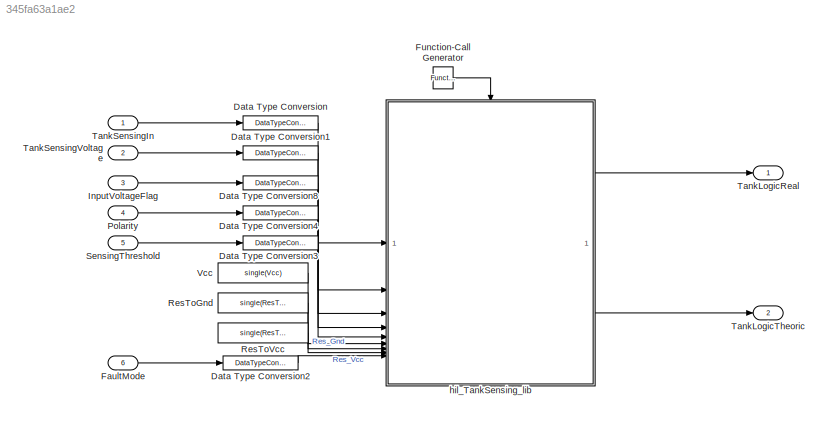
MODEL slx_345fa63a1ae2
KIND model
CONFIG AbsTol = auto
CONFIG EnableMultiTasking = off
CONFIG FixedStep = auto
CONFIG MaxStep = auto
CONFIG MinStep = auto
CONFIG RelTol = 1e-3
CONFIG SampleTimeConstraint = Unconstrained
CONFIG SolverName = VariableStepAuto
CONFIG StartTime = 0.0
CONFIG StopTime = 10.0
BLOCK [DataTypeConversion] Data Type Conversion
  OutDataTypeStr = single
  RndMeth = Floor
  SaturateOnIntegerOverflow = off
BLOCK [DataTypeConversion] Data Type Conversion1
  OutDataTypeStr = single
  RndMeth = Floor
  SaturateOnIntegerOverflow = off
BLOCK [DataTypeConversion] Data Type Conversion2
  OutDataTypeStr = uint8
  RndMeth = Floor
  SaturateOnIntegerOverflow = off
BLOCK [DataTypeConversion] Data Type Conversion3
  OutDataTypeStr = single
  RndMeth = Floor
  SaturateOnIntegerOverflow = off
BLOCK [DataTypeConversion] Data Type Conversion4
  OutDataTypeStr = uint8
  RndMeth = Floor
  SaturateOnIntegerOverflow = off
BLOCK [DataTypeConversion] Data Type Conversion8
  OutDataTypeStr = uint8
  RndMeth = Floor
  SaturateOnIntegerOverflow = off
BLOCK [Inport] FaultMode
  OutDataTypeStr = uint8
  Port = 6
BLOCK [Reference] Function-Call Generator  REF=simulink/Ports &
Subsystems/Function-Call
Generator
  SourceBlock = simulink/Ports &\nSubsystems/Function-Call\nGenerator
  SourceType = Function-Call Generator
BLOCK [Inport] InputVoltageFlag
  OutDataTypeStr = uint8
  Port = 3
BLOCK [Inport] Polarity
  OutDataTypeStr = uint8
  Port = 4
BLOCK [Constant] ResToGnd
  Value = single(ResToGnd)
BLOCK [Constant] ResToVcc
  Value = single(ResToVcc)
BLOCK [Inport] SensingThreshold 
  OutDataTypeStr = single
  Port = 5
BLOCK [Outport] TankLogicReal
  OutDataTypeStr = uint8
BLOCK [Outport] TankLogicTheoric
  OutDataTypeStr = uint8
  Port = 2
BLOCK [Inport] TankSensingIn
  OutDataTypeStr = single
BLOCK [Inport] TankSensingVoltage
  OutDataTypeStr = single
  Port = 2
BLOCK [Constant] Vcc
  OutDataTypeStr = single
  Value = single(Vcc)
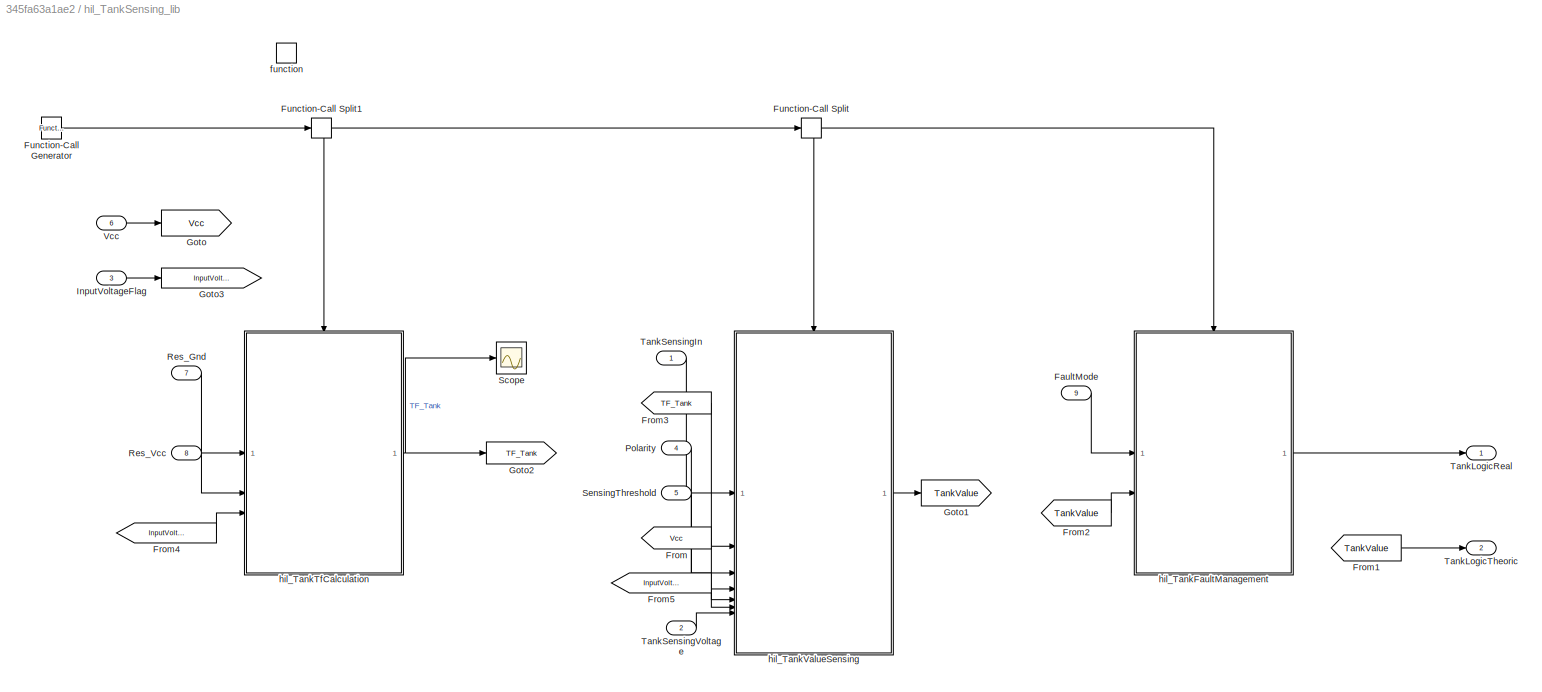
BLOCK [SubSystem] hil_TankSensing_lib
  AncestorBlock = tanksensing_lib/hil_TankSensing_lib
  LibrarySourceBlock = tanksensing_lib/hil_TankSensing_lib
  RTWFcnName = hil_tanksensing_lib
  RTWFcnNameOpts = User specified
  RTWSystemCode = Reusable function
  TreatAsAtomicUnit = on
BLOCK [Inport] hil_TankSensing_lib/FaultMode 
  Port = 9
BLOCK [From] hil_TankSensing_lib/From
  GotoTag = Vcc
BLOCK [From] hil_TankSensing_lib/From1
  GotoTag = TankValue
BLOCK [From] hil_TankSensing_lib/From2
  GotoTag = TankValue
BLOCK [From] hil_TankSensing_lib/From3
  GotoTag = TF_Tank
BLOCK [From] hil_TankSensing_lib/From4
  GotoTag = InputVoltageFlag
BLOCK [From] hil_TankSensing_lib/From5
  GotoTag = InputVoltageFlag
BLOCK [Reference] hil_TankSensing_lib/Function-Call Generator  REF=simulink/Ports &
Subsystems/Function-Call
Generator
  SourceBlock = simulink/Ports &\nSubsystems/Function-Call\nGenerator
  SourceType = Function-Call Generator
BLOCK [FunctionCallSplit] hil_TankSensing_lib/Function-Call Split
  NumOutputPorts = 2
  OutputPortLayout = default
BLOCK [FunctionCallSplit] hil_TankSensing_lib/Function-Call Split1
  NumOutputPorts = 2
  OutputPortLayout = default
BLOCK [Goto] hil_TankSensing_lib/Goto
  GotoTag = Vcc
BLOCK [Goto] hil_TankSensing_lib/Goto1
  GotoTag = TankValue
BLOCK [Goto] hil_TankSensing_lib/Goto2
  GotoTag = TF_Tank
BLOCK [Goto] hil_TankSensing_lib/Goto3
  GotoTag = InputVoltageFlag
BLOCK [Inport] hil_TankSensing_lib/InputVoltageFlag
  Port = 3
BLOCK [Inport] hil_TankSensing_lib/Polarity
  Port = 4
BLOCK [Inport] hil_TankSensing_lib/Res_Gnd
  Port = 7
BLOCK [Inport] hil_TankSensing_lib/Res_Vcc
  Port = 8
BLOCK [Scope] hil_TankSensing_lib/Scope
  Floating = off
  NumInputPorts = 1
  ScopeSpecificationString = Simulink.scopes.TimeScopeBlockCfg('CurrentConfiguration', extmgr.ConfigurationSet(extmgr.Configuration('Core','General UI',true),extmgr.Configuration('Core','Source UI',true),extmgr.Configuration('Sources','WiredSimulink',true,'DataLoggingVariableName','ScopeData1'),extmgr.Configuration('Visuals','Time Domain',true,'SerializedDisplays',{struct('MinYLimReal','-1.00000','MaxYLimReal','1.00000','YLab...<+1380ch>
BLOCK [Inport] hil_TankSensing_lib/SensingThreshold 
  Port = 5
BLOCK [Outport] hil_TankSensing_lib/TankLogicReal
  OutDataTypeStr = uint8
BLOCK [Outport] hil_TankSensing_lib/TankLogicTheoric
  OutDataTypeStr = uint8
  Port = 2
BLOCK [Inport] hil_TankSensing_lib/TankSensingIn
BLOCK [Inport] hil_TankSensing_lib/TankSensingVoltage
  Port = 2
BLOCK [Inport] hil_TankSensing_lib/Vcc
  Port = 6
BLOCK [TriggerPort] hil_TankSensing_lib/function
  StatesWhenEnabling = held
  TriggerType = function-call
  VariantControl = Variant
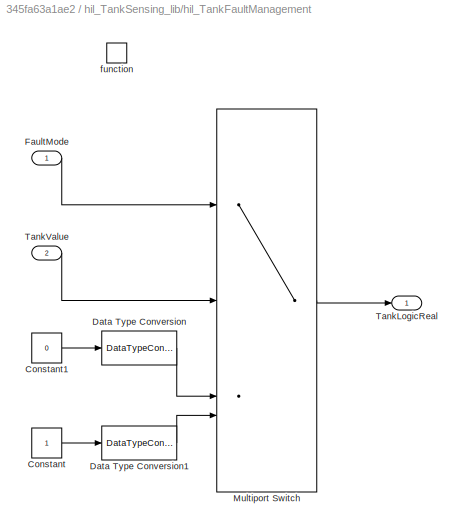
BLOCK [SubSystem] hil_TankSensing_lib/hil_TankFaultManagement
  TreatAsAtomicUnit = on
BLOCK [Constant] hil_TankSensing_lib/hil_TankFaultManagement/Constant
BLOCK [Constant] hil_TankSensing_lib/hil_TankFaultManagement/Constant1
  Value = 0
BLOCK [DataTypeConversion] hil_TankSensing_lib/hil_TankFaultManagement/Data Type Conversion
  OutDataTypeStr = uint8
  RndMeth = Floor
  SaturateOnIntegerOverflow = off
BLOCK [DataTypeConversion] hil_TankSensing_lib/hil_TankFaultManagement/Data Type Conversion1
  OutDataTypeStr = uint8
  RndMeth = Floor
  SaturateOnIntegerOverflow = off
BLOCK [Inport] hil_TankSensing_lib/hil_TankFaultManagement/FaultMode
BLOCK [MultiPortSwitch] hil_TankSensing_lib/hil_TankFaultManagement/Multiport Switch
  DataPortOrder = Zero-based contiguous
  InputSameDT = off
  SaturateOnIntegerOverflow = off
  zeroidx = on
BLOCK [Outport] hil_TankSensing_lib/hil_TankFaultManagement/TankLogicReal
BLOCK [Inport] hil_TankSensing_lib/hil_TankFaultManagement/TankValue
  Port = 2
BLOCK [TriggerPort] hil_TankSensing_lib/hil_TankFaultManagement/function
  StatesWhenEnabling = held
  TriggerType = function-call
  VariantControl = Variant
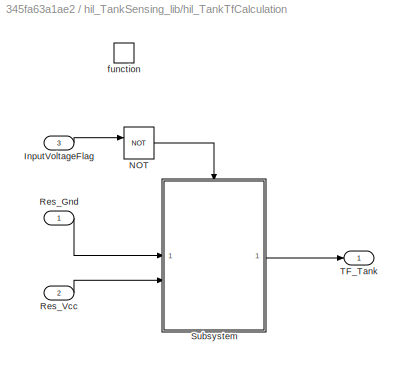
BLOCK [SubSystem] hil_TankSensing_lib/hil_TankTfCalculation
  TreatAsAtomicUnit = on
BLOCK [Inport] hil_TankSensing_lib/hil_TankTfCalculation/InputVoltageFlag
  Port = 3
BLOCK [Logic] hil_TankSensing_lib/hil_TankTfCalculation/NOT
  AllPortsSameDT = off
  IconShape = distinctive
  Operator = NOT
  OutDataTypeStr = boolean
BLOCK [Inport] hil_TankSensing_lib/hil_TankTfCalculation/Res_Gnd
BLOCK [Inport] hil_TankSensing_lib/hil_TankTfCalculation/Res_Vcc
  Port = 2
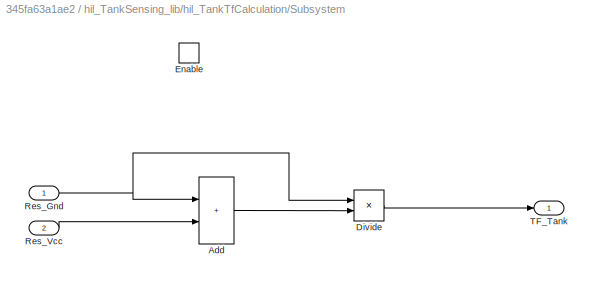
BLOCK [SubSystem] hil_TankSensing_lib/hil_TankTfCalculation/Subsystem
BLOCK [Sum] hil_TankSensing_lib/hil_TankTfCalculation/Subsystem/Add
  IconShape = rectangular
BLOCK [Product] hil_TankSensing_lib/hil_TankTfCalculation/Subsystem/Divide
  Inputs = */
BLOCK [EnablePort] hil_TankSensing_lib/hil_TankTfCalculation/Subsystem/Enable
BLOCK [Inport] hil_TankSensing_lib/hil_TankTfCalculation/Subsystem/Res_Gnd
BLOCK [Inport] hil_TankSensing_lib/hil_TankTfCalculation/Subsystem/Res_Vcc
  Port = 2
BLOCK [Outport] hil_TankSensing_lib/hil_TankTfCalculation/Subsystem/TF_Tank
  OutDataTypeStr = single
BLOCK [Outport] hil_TankSensing_lib/hil_TankTfCalculation/TF_Tank
  OutDataTypeStr = single
BLOCK [TriggerPort] hil_TankSensing_lib/hil_TankTfCalculation/function
  StatesWhenEnabling = held
  TriggerType = function-call
  VariantControl = Variant
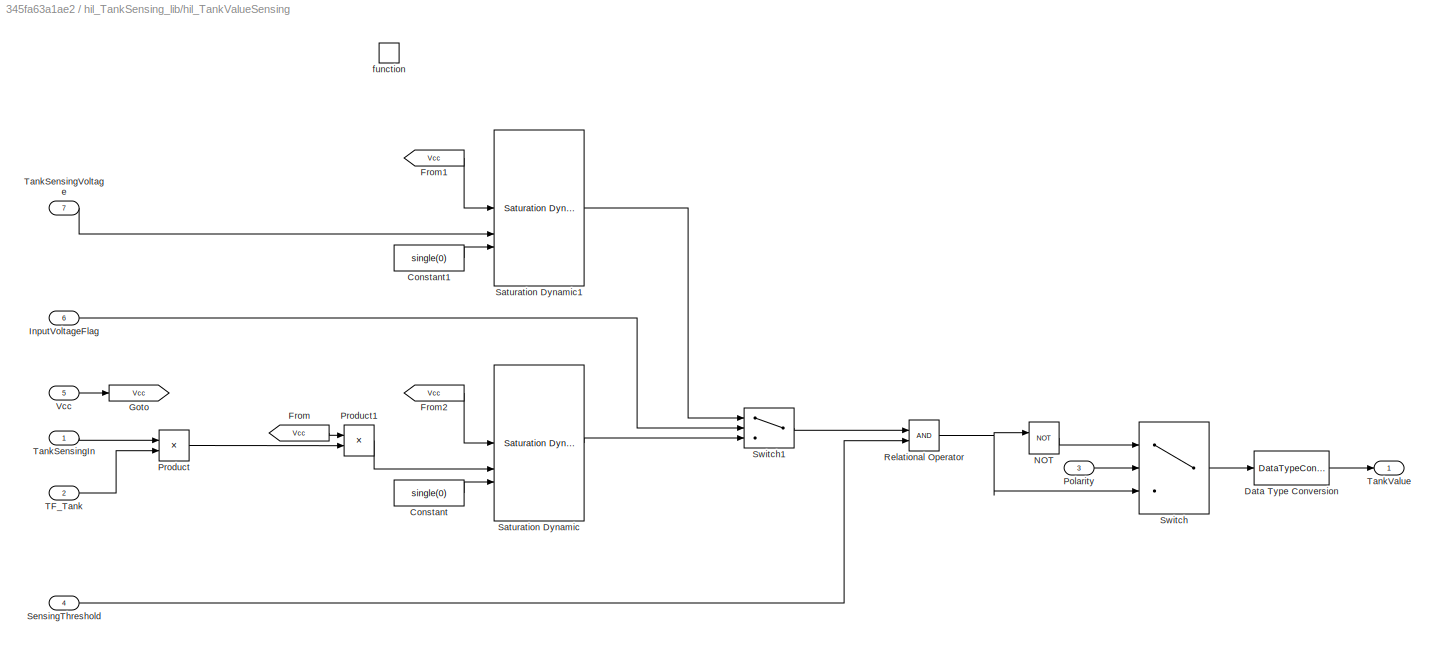
BLOCK [SubSystem] hil_TankSensing_lib/hil_TankValueSensing
  TreatAsAtomicUnit = on
BLOCK [Constant] hil_TankSensing_lib/hil_TankValueSensing/Constant
  Value = single(0)
BLOCK [Constant] hil_TankSensing_lib/hil_TankValueSensing/Constant1
  Value = single(0)
BLOCK [DataTypeConversion] hil_TankSensing_lib/hil_TankValueSensing/Data Type Conversion
  OutDataTypeStr = uint8
  RndMeth = Floor
  SaturateOnIntegerOverflow = off
BLOCK [From] hil_TankSensing_lib/hil_TankValueSensing/From
  GotoTag = Vcc
BLOCK [From] hil_TankSensing_lib/hil_TankValueSensing/From1
  GotoTag = Vcc
BLOCK [From] hil_TankSensing_lib/hil_TankValueSensing/From2
  GotoTag = Vcc
BLOCK [Goto] hil_TankSensing_lib/hil_TankValueSensing/Goto
  GotoTag = Vcc
BLOCK [Inport] hil_TankSensing_lib/hil_TankValueSensing/InputVoltageFlag
  Port = 6
BLOCK [Logic] hil_TankSensing_lib/hil_TankValueSensing/NOT
  AllPortsSameDT = off
  IconShape = distinctive
  Operator = NOT
  OutDataTypeStr = boolean
BLOCK [Inport] hil_TankSensing_lib/hil_TankValueSensing/Polarity
  Port = 3
BLOCK [Product] hil_TankSensing_lib/hil_TankValueSensing/Product
BLOCK [Product] hil_TankSensing_lib/hil_TankValueSensing/Product1
BLOCK [RelationalOperator] hil_TankSensing_lib/hil_TankValueSensing/Relational Operator
  InputSameDT = off
  OutDataTypeStr = boolean
  RndMeth = Zero
BLOCK [Reference] hil_TankSensing_lib/hil_TankValueSensing/Saturation Dynamic  REF=simulink/Discontinuities/Saturation
Dynamic
  SourceBlock = simulink/Discontinuities/Saturation\nDynamic
  SourceType = Saturation Dynamic
BLOCK [Reference] hil_TankSensing_lib/hil_TankValueSensing/Saturation Dynamic1  REF=simulink/Discontinuities/Saturation
Dynamic
  SourceBlock = simulink/Discontinuities/Saturation\nDynamic
  SourceType = Saturation Dynamic
BLOCK [Inport] hil_TankSensing_lib/hil_TankValueSensing/SensingThreshold
  Port = 4
BLOCK [Switch] hil_TankSensing_lib/hil_TankValueSensing/Switch
  Criteria = u2 > Threshold
  InputSameDT = off
  SaturateOnIntegerOverflow = off
BLOCK [Switch] hil_TankSensing_lib/hil_TankValueSensing/Switch1
  Criteria = u2 > Threshold
  InputSameDT = off
  SaturateOnIntegerOverflow = off
BLOCK [Inport] hil_TankSensing_lib/hil_TankValueSensing/TF_Tank
  Port = 2
BLOCK [Inport] hil_TankSensing_lib/hil_TankValueSensing/TankSensingIn
BLOCK [Inport] hil_TankSensing_lib/hil_TankValueSensing/TankSensingVoltage
  Port = 7
BLOCK [Outport] hil_TankSensing_lib/hil_TankValueSensing/TankValue 
BLOCK [Inport] hil_TankSensing_lib/hil_TankValueSensing/Vcc 
  Port = 5
BLOCK [TriggerPort] hil_TankSensing_lib/hil_TankValueSensing/function
  StatesWhenEnabling = held
  TriggerType = function-call
  VariantControl = Variant
LINE Data Type Conversion1:1 -> hil_TankSensing_lib:2
LINE Data Type Conversion2:1 -> hil_TankSensing_lib:9
LINE Data Type Conversion3:1 -> hil_TankSensing_lib:5
LINE Data Type Conversion4:1 -> hil_TankSensing_lib:4
LINE Data Type Conversion8:1 -> hil_TankSensing_lib:3
LINE Data Type Conversion:1 -> hil_TankSensing_lib:1
LINE FaultMode:1 -> Data Type Conversion2:1
LINE Function-Call Generator:1 -> hil_TankSensing_lib:trigger
LINE InputVoltageFlag:1 -> Data Type Conversion8:1
LINE Polarity:1 -> Data Type Conversion4:1
LINE ResToGnd:1 -> hil_TankSensing_lib:7
LINE ResToVcc:1 -> hil_TankSensing_lib:8
LINE SensingThreshold :1 -> Data Type Conversion3:1
LINE TankSensingIn:1 -> Data Type Conversion:1
LINE TankSensingVoltage:1 -> Data Type Conversion1:1
LINE Vcc:1 -> hil_TankSensing_lib:6
LINE hil_TankSensing_lib:1 -> TankLogicReal:1
LINE hil_TankSensing_lib:2 -> TankLogicTheoric:1
CHART Function-call scheduler states=1 transitions=1
  STATE_LABEL 'Run\n\n\n\nsend(xFunction);\n'
CHART Test Sequence states=1 transitions=1
  STATE_LABEL 'Run\n\n%% Initialize data outputs.\nTankSensingIn = single(0);\nTankSensingVoltage = single(0);\nInputVoltageFlag = uint8(0);\nPolarity = uint8(0);\nSensingThreshold = single(0);\nVcc = single(0);\nRes_Gnd = single(0);\nRes_Vcc = single(0);\nFaultMode = uint8(0);'
CHART Test Sequence states=2 transitions=1
  STATE_LABEL 'Run\n\n%% Call Initialization task.\nif t == 0\n    send(Initialize);\nend\n\n%% Initialize data outputs.\nTankSensingIn = uint8(0);\nTankSensingVoltage = uint8(0);\nInputVoltageFlag = uint8(0);\nPolarity = uint8(0);\nSensingThreshold = uint8(0);\n\n\nsend(D1);'
  STATE_LABEL 'Terminate\n\n% Call Terminate task.\n% Add transitions to this step as required.\nsend(Terminate);'
CHART Test Sequence states=2 transitions=1
  STATE_LABEL 'Run\n\n%% Call Initialization task.\nif t == 0\n    send(Initialize);\nend\n\n%% Initialize data outputs.\nTankSensingIn = uint8(0);\nTankSensingVoltage = uint8(0);\nInputVoltageFlag = uint8(0);\nPolarity = uint8(0);\nSensingThreshold = uint8(0);\n\n\nsend(D1);'
  STATE_LABEL 'Terminate\n\n% Call Terminate task.\n% Add transitions to this step as required.\nsend(Terminate);'
CHART Test Sequence states=35 transitions=35
  STATE_LABEL 'Scenario_Normal'
  STATE_LABEL 'Run\n\n%% Initialize data outputs.\nTankSensingIn = single(0.4);\nTankSensingVoltage = single(4.5);\nInputVoltageFlag = uint8(0);\nPolarity = uint8(0);\nSensingThreshold = single(0.5);\nFaultMode = uint8(0);'  <repeated x4 — deduplicated; at blocks: Test Sequence>
  STATE_LABEL 'InputVoltageFlag_Pulse'
  STATE_LABEL 'Run\n\n%% Initialize data outputs.\nTankSensingIn = single(0.4);\nTankSensingVoltage = single(4.5);\nInputVoltageFlag = uint8(1);\nPolarity = uint8(0);\nSensingThreshold = single(0.5);\nFaultMode = uint8(0);'  <repeated x4 — deduplicated; at blocks: Test Sequence>
  STATE_LABEL 'step_1\n\nInputVoltageFlag = uint8(0);\n'
  STATE_LABEL 'STOP'
  STATE_LABEL '[\nafter(2,sec)\n]'
  STATE_LABEL '[\nafter(2,sec)\n]'
  STATE_LABEL 'step_1\n\nInputVoltageFlag = uint8(0);\n'
  STATE_LABEL 'STOP'
  STATE_LABEL 'InputVoltageFlag_one'
  STATE_LABEL 'InputVoltageFlag_one_polarity_one'
  STATE_LABEL 'Run\n\n%% Initialize data outputs.\nTankSensingIn = single(0.4);\nTankSensingVoltage = single(4.5);\nInputVoltageFlag = uint8(1);\nPolarity = uint8(1);\nSensingThreshold = single(0.5);\nFaultMode = uint8(0);'
  STATE_LABEL 'Run\n\n%% Initialize data outputs.\nTankSensingIn = single(0.4);\nTankSensingVoltage = single(4.5);\nInputVoltageFlag = uint8(1);\nPolarity = uint8(1);\nSensingThreshold = single(0.5);\nFaultMode = uint8(0);'
  STATE_LABEL 'TankSensingVoltage_more_5'
  STATE_LABEL 'Run\n\n%% Initialize data outputs.\nTankSensingIn = single(0.4);\nTankSensingVoltage = single(6.5);\nInputVoltageFlag = uint8(1);\nPolarity = uint8(0);\nSensingThreshold = single(0.5);\nFaultMode = uint8(0);'
  STATE_LABEL 'Run\n\n%% Initialize data outputs.\nTankSensingIn = single(0.4);\nTankSensingVoltage = single(6.5);\nInputVoltageFlag = uint8(1);\nPolarity = uint8(0);\nSensingThreshold = single(0.5);\nFaultMode = uint8(0);'
  STATE_LABEL 'TankSensingVoltage_less_zero'
  STATE_LABEL 'Run\n\n%% Initialize data outputs.\nTankSensingIn = single(0.4);\nTankSensingVoltage = single(-2.5);\nInputVoltageFlag = uint8(1);\nPolarity = uint8(0);\nSensingThreshold = single(0.5);\nFaultMode = uint8(0);'
  STATE_LABEL 'Run\n\n%% Initialize data outputs.\nTankSensingIn = single(0.4);\nTankSensingVoltage = single(-2.5);\nInputVoltageFlag = uint8(1);\nPolarity = uint8(0);\nSensingThreshold = single(0.5);\nFaultMode = uint8(0);'
  STATE_LABEL 'InputVoltageFlag_zero'
  STATE_LABEL 'InputVoltageFlag_zero_more_1'
  STATE_LABEL 'Run\n\n%% Initialize data outputs.\nTankSensingIn = single(1.4);\nTankSensingVoltage = single(4.5);\nInputVoltageFlag = uint8(0);\nPolarity = uint8(0);\nSensingThreshold = single(0.5);\nFaultMode = uint8(0);'
  STATE_LABEL 'Run\n\n%% Initialize data outputs.\nTankSensingIn = single(1.4);\nTankSensingVoltage = single(4.5);\nInputVoltageFlag = uint8(0);\nPolarity = uint8(0);\nSensingThreshold = single(0.5);\nFaultMode = uint8(0);'
  STATE_LABEL 'InputVoltageFlag_zero_less_0'
  STATE_LABEL 'Run\n\n%% Initialize data outputs.\nTankSensingIn = single(-0.4);\nTankSensingVoltage = single(4.5);\nInputVoltageFlag = uint8(0);\nPolarity = uint8(0);\nSensingThreshold = single(0.5);\nFaultMode = uint8(0);'
  STATE_LABEL 'Run\n\n%% Initialize data outputs.\nTankSensingIn = single(-0.4);\nTankSensingVoltage = single(4.5);\nInputVoltageFlag = uint8(0);\nPolarity = uint8(0);\nSensingThreshold = single(0.5);\nFaultMode = uint8(0);'
  STATE_LABEL 'FaultMode_one'
  STATE_LABEL 'Run\n\n%% Initialize data outputs.\nTankSensingIn = single(0.4);\nTankSensingVoltage = single(4.5);\nInputVoltageFlag = uint8(1);\nPolarity = uint8(0);\nSensingThreshold = single(0.5);\nFaultMode = uint8(1);'
  STATE_LABEL 'Run\n\n%% Initialize data outputs.\nTankSensingIn = single(0.4);\nTankSensingVoltage = single(4.5);\nInputVoltageFlag = uint8(1);\nPolarity = uint8(0);\nSensingThreshold = single(0.5);\nFaultMode = uint8(1);'
  STATE_LABEL 'FaultMode_two'
  STATE_LABEL 'Run\n\n%% Initialize data outputs.\nTankSensingIn = single(0.4);\nTankSensingVoltage = single(4.5);\nInputVoltageFlag = uint8(1);\nPolarity = uint8(0);\nSensingThreshold = single(0.5);\nFaultMode = uint8(2);'
  STATE_LABEL 'Run\n\n%% Initialize data outputs.\nTankSensingIn = single(0.4);\nTankSensingVoltage = single(4.5);\nInputVoltageFlag = uint8(1);\nPolarity = uint8(0);\nSensingThreshold = single(0.5);\nFaultMode = uint8(2);'
  STATE_LABEL 'SensingThreshold_pulse'
